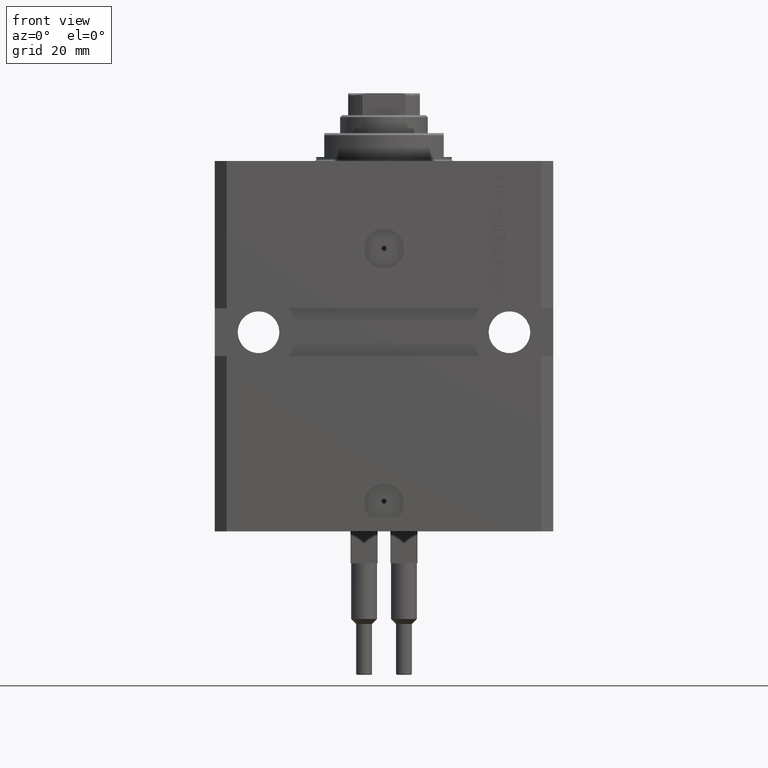
[diagram: clean part render]
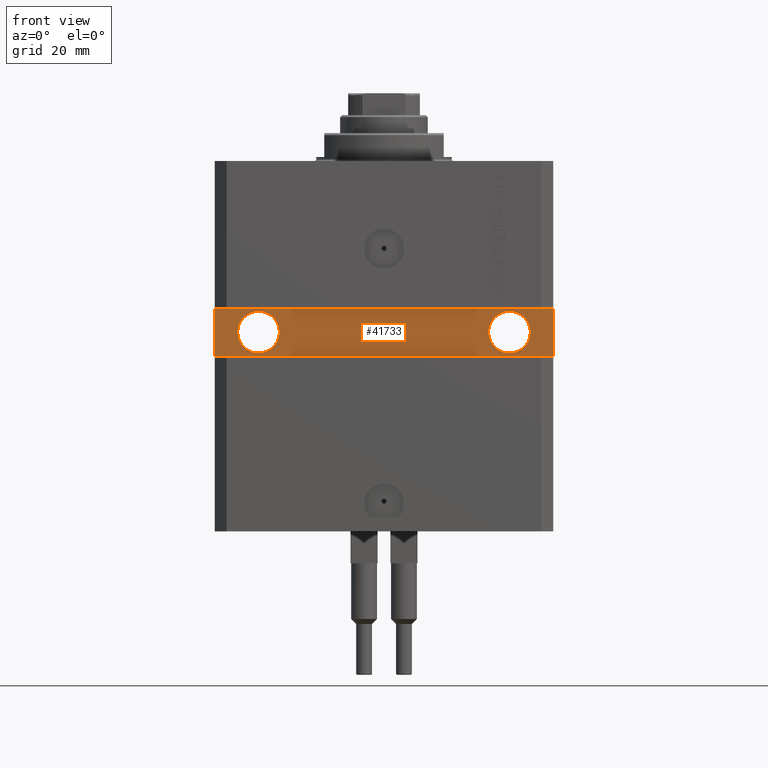
[diagram: same view with one face highlighted and labeled with its STEP entity id]
A machine part, front view. The second image highlights one B-rep face of the part: STEP entity #41733.
In plain terms, the highlighted planar face has unit normal (0, -1, 0).
Its self-contained STEP definition (entity closure, byte-faithful):
#199 = ORIENTED_EDGE ( 'NONE', *, *, #4344, .T. ) ;
#457 = EDGE_LOOP ( 'NONE', ( #24037, #36035 ) ) ;
#663 = AXIS2_PLACEMENT_3D ( 'NONE', #47623, #7257, #41183 ) ;
#1226 = DIRECTION ( 'NONE',  ( 0.000000000000000000, 0.000000000000000000, 1.000000000000000000 ) ) ;
#3463 = CARTESIAN_POINT ( 'NONE',  ( 42.50000000000001421, -28.49999999999999289, -48.99999999999999289 ) ) ;
#4112 = CARTESIAN_POINT ( 'NONE',  ( -42.50000000000000000, -28.50000000000000711, -48.99999999999999289 ) ) ;
#4344 = EDGE_CURVE ( 'NONE', #46465, #41525, #44052, .T. ) ;
#4857 = DIRECTION ( 'NONE',  ( 1.000000000000000000, 0.000000000000000000, 0.000000000000000000 ) ) ;
#6334 = FACE_OUTER_BOUND ( 'NONE', #47626, .T. ) ;
#7257 = DIRECTION ( 'NONE',  ( 1.037025423586453699E-16, -1.000000000000000000, 1.848892746611746419E-32 ) ) ;
#8586 = EDGE_CURVE ( 'NONE', #41525, #8955, #33588, .T. ) ;
#8955 = VERTEX_POINT ( 'NONE', #22141 ) ;
#9732 = VECTOR ( 'NONE', #14088, 1000.000000000000000 ) ;
#9803 = DIRECTION ( 'NONE',  ( 1.632680918566406300E-16, -1.000000000000000000, 0.000000000000000000 ) ) ;
#9968 = DIRECTION ( 'NONE',  ( 1.037025423586453699E-16, -1.000000000000000000, 1.848892746611746419E-32 ) ) ;
#10242 = ORIENTED_EDGE ( 'NONE', *, *, #16189, .T. ) ;
#10863 = DIRECTION ( 'NONE',  ( -1.000000000000000000, -1.632680918566406300E-16, -2.449021377849609204E-16 ) ) ;
#10943 = DIRECTION ( 'NONE',  ( 1.000000000000000000, 0.000000000000000000, 0.000000000000000000 ) ) ;
#11641 = CARTESIAN_POINT ( 'NONE',  ( 26.25000000000001776, -28.49999999999999645, -43.00000000000000000 ) ) ;
#11956 = ORIENTED_EDGE ( 'NONE', *, *, #37607, .T. ) ;
#14088 = DIRECTION ( 'NONE',  ( 0.000000000000000000, 0.000000000000000000, -1.000000000000000000 ) ) ;
#14665 = CARTESIAN_POINT ( 'NONE',  ( 31.50000000000001421, -28.49999999999999645, -43.00000000000000000 ) ) ;
#15044 = ORIENTED_EDGE ( 'NONE', *, *, #8586, .T. ) ;
#15290 = CARTESIAN_POINT ( 'NONE',  ( -36.74999999999998579, -28.50000000000000355, -43.00000000000000000 ) ) ;
#16189 = EDGE_CURVE ( 'NONE', #8955, #19049, #37383, .T. ) ;
#16927 = VERTEX_POINT ( 'NONE', #11641 ) ;
#17726 = DIRECTION ( 'NONE',  ( 1.000000000000000000, 1.632680918566406300E-16, 0.000000000000000000 ) ) ;
#18546 = CIRCLE ( 'NONE', #39122, 5.249999999999997335 ) ;
#19049 = VERTEX_POINT ( 'NONE', #41071 ) ;
#20309 = CIRCLE ( 'NONE', #44849, 5.249999999999997335 ) ;
#21005 = VERTEX_POINT ( 'NONE', #15290 ) ;
#21191 = FACE_BOUND ( 'NONE', #457, .T. ) ;
#21471 = EDGE_CURVE ( 'NONE', #28726, #16927, #21993, .T. ) ;
#21993 = CIRCLE ( 'NONE', #663, 5.249999999999997335 ) ;
#22141 = CARTESIAN_POINT ( 'NONE',  ( 42.50000000000001421, -28.49999999999999289, -48.99999999999999289 ) ) ;
#22453 = VECTOR ( 'NONE', #48672, 1000.000000000000000 ) ;
#23134 = EDGE_CURVE ( 'NONE', #21005, #47981, #29430, .T. ) ;
#23268 = CARTESIAN_POINT ( 'NONE',  ( -42.50000000000000000, -28.50000000000000711, -48.99999999999999289 ) ) ;
#23524 = VECTOR ( 'NONE', #1226, 1000.000000000000000 ) ;
#23768 = EDGE_LOOP ( 'NONE', ( #26563, #27057 ) ) ;
#24037 = ORIENTED_EDGE ( 'NONE', *, *, #21471, .F. ) ;
#25939 = DIRECTION ( 'NONE',  ( 1.101411730780568590E-16, -1.000000000000000000, 0.000000000000000000 ) ) ;
#26563 = ORIENTED_EDGE ( 'NONE', *, *, #40454, .F. ) ;
#26645 = CARTESIAN_POINT ( 'NONE',  ( 36.75000000000001421, -28.49999999999999645, -43.00000000000000000 ) ) ;
#26913 = DIRECTION ( 'NONE',  ( 1.101411730780568590E-16, -1.000000000000000000, 0.000000000000000000 ) ) ;
#27057 = ORIENTED_EDGE ( 'NONE', *, *, #23134, .F. ) ;
#27454 = AXIS2_PLACEMENT_3D ( 'NONE', #28861, #9803, #17726 ) ;
#28570 = CARTESIAN_POINT ( 'NONE',  ( -42.50000000000000000, -28.50000000000000711, -37.00000000000000711 ) ) ;
#28726 = VERTEX_POINT ( 'NONE', #26645 ) ;
#28861 = CARTESIAN_POINT ( 'NONE',  ( 4.790119779726142858E-15, -28.50000000000000000, 0.000000000000000000 ) ) ;
#29430 = CIRCLE ( 'NONE', #31797, 5.249999999999997335 ) ;
#29815 = VECTOR ( 'NONE', #10863, 1000.000000000000000 ) ;
#30416 = LINE ( 'NONE', #37126, #29815 ) ;
#31797 = AXIS2_PLACEMENT_3D ( 'NONE', #34580, #25939, #34334 ) ;
#32785 = EDGE_CURVE ( 'NONE', #16927, #28726, #18546, .T. ) ;
#33588 = LINE ( 'NONE', #4112, #22453 ) ;
#34334 = DIRECTION ( 'NONE',  ( 1.000000000000000000, 0.000000000000000000, 0.000000000000000000 ) ) ;
#34580 = CARTESIAN_POINT ( 'NONE',  ( -31.49999999999998579, -28.50000000000000355, -43.00000000000000000 ) ) ;
#35732 = CARTESIAN_POINT ( 'NONE',  ( -26.24999999999998934, -28.50000000000000355, -43.00000000000000000 ) ) ;
#36035 = ORIENTED_EDGE ( 'NONE', *, *, #32785, .F. ) ;
#36536 = FACE_BOUND ( 'NONE', #23768, .T. ) ;
#37126 = CARTESIAN_POINT ( 'NONE',  ( 42.50000000000001421, -28.49999999999999289, -36.99999999999998579 ) ) ;
#37383 = LINE ( 'NONE', #3463, #23524 ) ;
#37607 = EDGE_CURVE ( 'NONE', #19049, #46465, #30416, .T. ) ;
#38784 = CARTESIAN_POINT ( 'NONE',  ( -31.49999999999998579, -28.50000000000000355, -43.00000000000000000 ) ) ;
#39122 = AXIS2_PLACEMENT_3D ( 'NONE', #14665, #9968, #10943 ) ;
#40454 = EDGE_CURVE ( 'NONE', #47981, #21005, #20309, .T. ) ;
#41071 = CARTESIAN_POINT ( 'NONE',  ( 42.50000000000001421, -28.49999999999999289, -36.99999999999998579 ) ) ;
#41183 = DIRECTION ( 'NONE',  ( 1.000000000000000000, 0.000000000000000000, 0.000000000000000000 ) ) ;
#41525 = VERTEX_POINT ( 'NONE', #23268 ) ;
#41733 = ADVANCED_FACE ( 'NONE', ( #21191, #36536, #6334 ), #48162, .T. ) ;
#44052 = LINE ( 'NONE', #47996, #9732 ) ;
#44849 = AXIS2_PLACEMENT_3D ( 'NONE', #38784, #26913, #4857 ) ;
#46465 = VERTEX_POINT ( 'NONE', #28570 ) ;
#47623 = CARTESIAN_POINT ( 'NONE',  ( 31.50000000000001421, -28.49999999999999645, -43.00000000000000000 ) ) ;
#47626 = EDGE_LOOP ( 'NONE', ( #15044, #10242, #11956, #199 ) ) ;
#47981 = VERTEX_POINT ( 'NONE', #35732 ) ;
#47996 = CARTESIAN_POINT ( 'NONE',  ( -42.50000000000000000, -28.50000000000000711, -37.00000000000000711 ) ) ;
#48162 = PLANE ( 'NONE',  #27454 ) ;
#48672 = DIRECTION ( 'NONE',  ( 1.000000000000000000, 1.632680918566406300E-16, 0.000000000000000000 ) ) ;